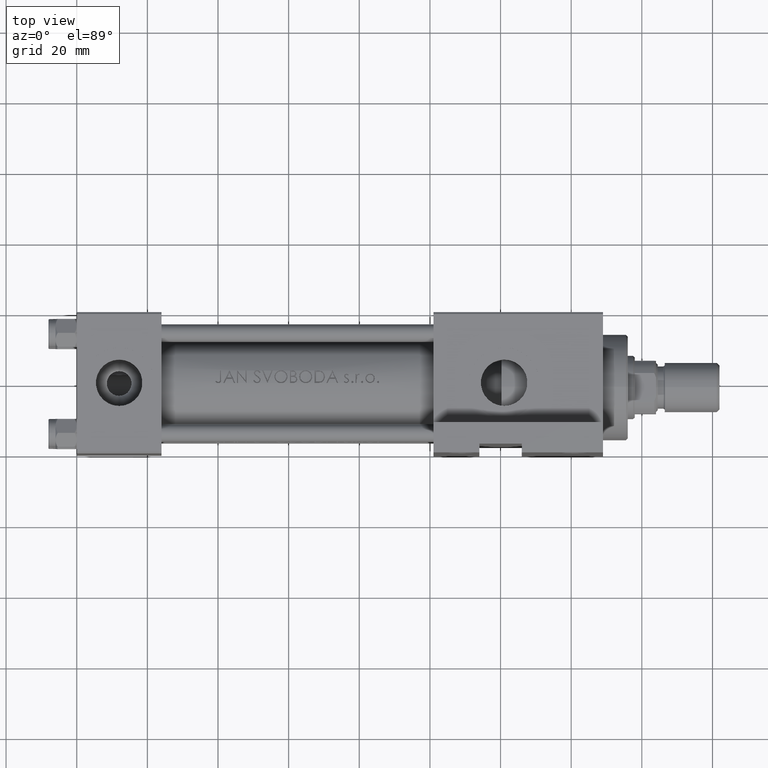
[diagram: clean part render]
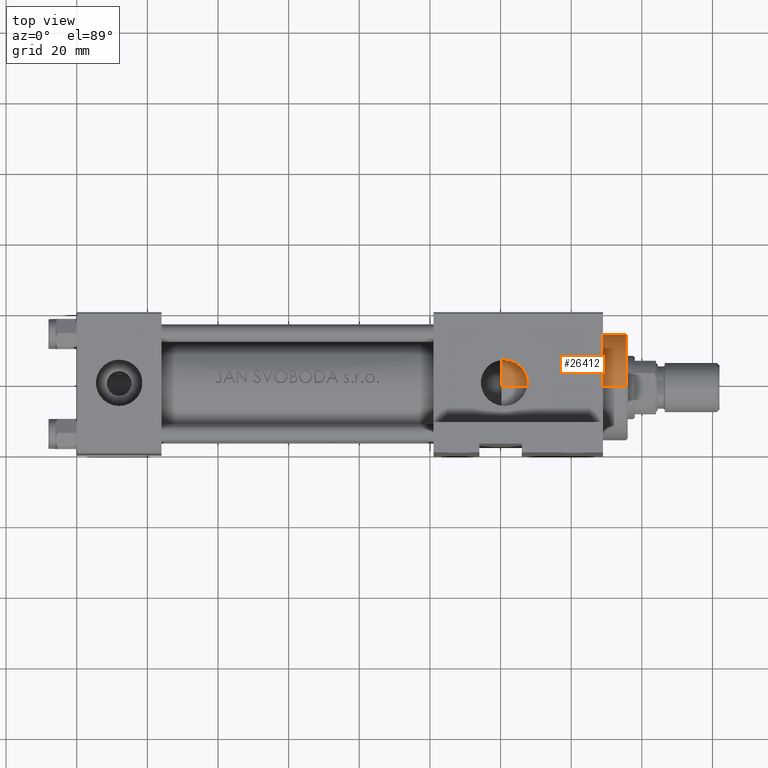
[diagram: same view with one face highlighted and labeled with its STEP entity id]
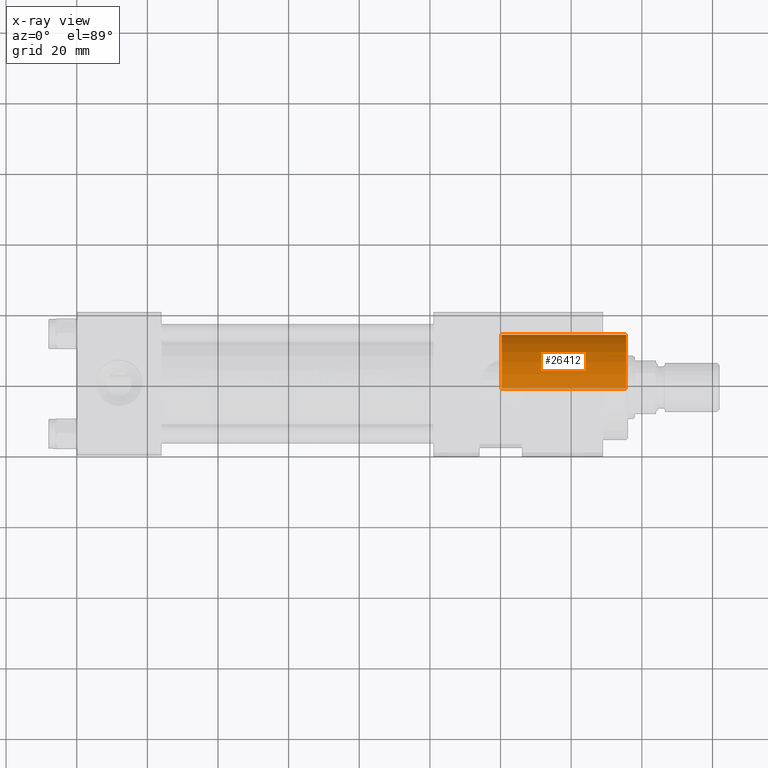
[diagram: x-ray of the same camera — body ghosted, the highlighted face saturated]
A machine part, top view. The second image highlights one B-rep face of the part: STEP entity #26412.
The next image is the same camera in x-ray: the body ghosted, the highlighted face saturated — about 4% of this face is hidden behind the body in this view.
In plain terms, the highlighted cylindrical surface (partial cylindrical patch) has radius 15 mm, axis along (-1, 0, 0).
Its self-contained STEP definition (entity closure, byte-faithful):
#186 = CIRCLE ( 'NONE', #21880, 15.00000000000000000 ) ;
#969 = CYLINDRICAL_SURFACE ( 'NONE', #25888, 15.00000000000000000 ) ;
#2413 = CARTESIAN_POINT ( 'NONE',  ( -15.00000000000000000, 0.000000000000000000, 35.19999999999999574 ) ) ;
#4718 = DIRECTION ( 'NONE',  ( 0.000000000000000000, 0.000000000000000000, -1.000000000000000000 ) ) ;
#5879 = VECTOR ( 'NONE', #6306, 1000.000000000000000 ) ;
#6306 = DIRECTION ( 'NONE',  ( -0.000000000000000000, -0.000000000000000000, -1.000000000000000000 ) ) ;
#8756 = DIRECTION ( 'NONE',  ( 1.000000000000000000, 0.000000000000000000, 0.000000000000000000 ) ) ;
#8955 = EDGE_LOOP ( 'NONE', ( #23555, #26782, #24118, #23144 ) ) ;
#9186 = EDGE_CURVE ( 'NONE', #39204, #11199, #186, .T. ) ;
#10570 = EDGE_CURVE ( 'NONE', #39204, #19376, #22650, .T. ) ;
#10761 = CARTESIAN_POINT ( 'NONE',  ( -15.00000000000000000, 0.000000000000000000, 28.69999999999999929 ) ) ;
#11199 = VERTEX_POINT ( 'NONE', #2413 ) ;
#12294 = CARTESIAN_POINT ( 'NONE',  ( 0.000000000000000000, 0.000000000000000000, 28.69999999999999929 ) ) ;
#17655 = VERTEX_POINT ( 'NONE', #35732 ) ;
#19376 = VERTEX_POINT ( 'NONE', #24424 ) ;
#21880 = AXIS2_PLACEMENT_3D ( 'NONE', #39199, #4718, #8756 ) ;
#21976 = AXIS2_PLACEMENT_3D ( 'NONE', #30716, #22914, #45799 ) ;
#22650 = LINE ( 'NONE', #34240, #5879 ) ;
#22914 = DIRECTION ( 'NONE',  ( 0.000000000000000000, 0.000000000000000000, 1.000000000000000000 ) ) ;
#23144 = ORIENTED_EDGE ( 'NONE', *, *, #29490, .T. ) ;
#23555 = ORIENTED_EDGE ( 'NONE', *, *, #10570, .F. ) ;
#24118 = ORIENTED_EDGE ( 'NONE', *, *, #42720, .T. ) ;
#24424 = CARTESIAN_POINT ( 'NONE',  ( 15.00000000000000000, 1.836970198721029589E-15, 0.000000000000000000 ) ) ;
#25888 = AXIS2_PLACEMENT_3D ( 'NONE', #12294, #39219, #39968 ) ;
#26412 = ADVANCED_FACE ( 'NONE', ( #46770 ), #969, .T. ) ;
#26782 = ORIENTED_EDGE ( 'NONE', *, *, #9186, .T. ) ;
#29490 = EDGE_CURVE ( 'NONE', #17655, #19376, #42088, .T. ) ;
#30716 = CARTESIAN_POINT ( 'NONE',  ( 0.000000000000000000, 0.000000000000000000, 0.000000000000000000 ) ) ;
#32393 = CARTESIAN_POINT ( 'NONE',  ( 15.00000000000000000, 1.836970198721029589E-15, 35.19999999999999574 ) ) ;
#34240 = CARTESIAN_POINT ( 'NONE',  ( 15.00000000000000000, 1.836970198721029589E-15, 28.69999999999999929 ) ) ;
#35732 = CARTESIAN_POINT ( 'NONE',  ( -15.00000000000000000, 0.000000000000000000, 0.000000000000000000 ) ) ;
#36803 = VECTOR ( 'NONE', #44486, 1000.000000000000000 ) ;
#39199 = CARTESIAN_POINT ( 'NONE',  ( 0.000000000000000000, 0.000000000000000000, 35.19999999999999574 ) ) ;
#39204 = VERTEX_POINT ( 'NONE', #32393 ) ;
#39219 = DIRECTION ( 'NONE',  ( -0.000000000000000000, -0.000000000000000000, -1.000000000000000000 ) ) ;
#39968 = DIRECTION ( 'NONE',  ( -1.000000000000000000, 0.000000000000000000, 0.000000000000000000 ) ) ;
#42088 = CIRCLE ( 'NONE', #21976, 15.00000000000000000 ) ;
#42720 = EDGE_CURVE ( 'NONE', #11199, #17655, #48739, .T. ) ;
#44486 = DIRECTION ( 'NONE',  ( -0.000000000000000000, -0.000000000000000000, -1.000000000000000000 ) ) ;
#45799 = DIRECTION ( 'NONE',  ( 1.000000000000000000, 0.000000000000000000, 0.000000000000000000 ) ) ;
#46770 = FACE_OUTER_BOUND ( 'NONE', #8955, .T. ) ;
#48739 = LINE ( 'NONE', #10761, #36803 ) ;